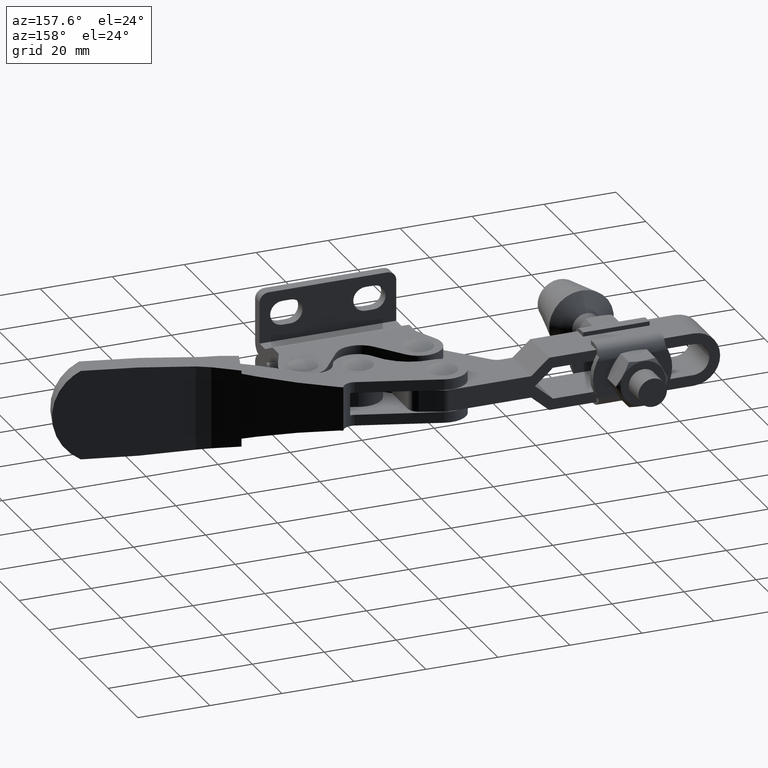
[diagram: clean part render]
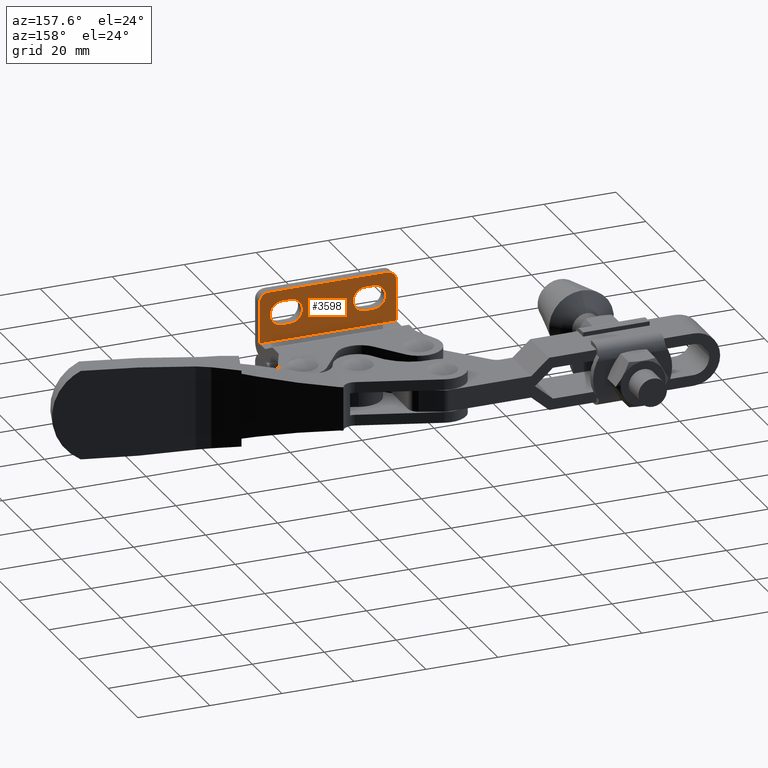
[diagram: same view with one face highlighted and labeled with its STEP entity id]
A machine part, auxiliary view. The second image highlights one B-rep face of the part: STEP entity #3598.
In plain terms, the highlighted planar face has unit normal (0, -1, 0).
Its self-contained STEP definition (entity closure, byte-faithful):
#105 = CIRCLE ( 'NONE', #3695, 2.500000000000000400 ) ;
#118 = ORIENTED_EDGE ( 'NONE', *, *, #6476, .F. ) ;
#120 = ORIENTED_EDGE ( 'NONE', *, *, #7947, .F. ) ;
#341 = ORIENTED_EDGE ( 'NONE', *, *, #8487, .F. ) ;
#613 = EDGE_LOOP ( 'NONE', ( #3210, #5684, #118, #10963 ) ) ;
#643 = VERTEX_POINT ( 'NONE', #5485 ) ;
#686 = CARTESIAN_POINT ( 'NONE',  ( 3.499999999999809000, 3.003038827833684400, 17.49580986106407500 ) ) ;
#713 = CARTESIAN_POINT ( 'NONE',  ( 41.50000000000009900, 3.003038827833684400, 3.494025664384484500 ) ) ;
#797 = CARTESIAN_POINT ( 'NONE',  ( 41.50000000000009900, 3.003038827833684400, 17.49580986106407500 ) ) ;
#921 = PLANE ( 'NONE',  #6405 ) ;
#960 = VERTEX_POINT ( 'NONE', #3116 ) ;
#963 = EDGE_CURVE ( 'NONE', #6530, #6537, #1988, .T. ) ;
#1022 = DIRECTION ( 'NONE',  ( 0.0000000000000000000, 1.000000000000000000, 2.168404344971008900E-019 ) ) ;
#1072 = CIRCLE ( 'NONE', #4188, 3.350000000000017900 ) ;
#1351 = CIRCLE ( 'NONE', #10800, 3.350000000000017900 ) ;
#1570 = DIRECTION ( 'NONE',  ( 0.0000000000000000000, 0.0000000000000000000, -1.000000000000000000 ) ) ;
#1707 = EDGE_CURVE ( 'NONE', #4796, #6530, #1351, .T. ) ;
#1782 = CARTESIAN_POINT ( 'NONE',  ( 3.499999999999809000, 3.003038827833684400, 3.494025664384484500 ) ) ;
#1790 = EDGE_CURVE ( 'NONE', #960, #643, #1072, .T. ) ;
#1900 = CARTESIAN_POINT ( 'NONE',  ( 35.20000000000003800, 3.003038827833684400, 7.745809861064102200 ) ) ;
#1945 = LINE ( 'NONE', #5148, #11170 ) ;
#1988 = LINE ( 'NONE', #9361, #3754 ) ;
#2008 = DIRECTION ( 'NONE',  ( 0.0000000000000000000, 1.000000000000000000, 2.168404344971008900E-019 ) ) ;
#2322 = CARTESIAN_POINT ( 'NONE',  ( 32.89999999999985600, 3.003038827833684400, 7.745809861064102200 ) ) ;
#2524 = EDGE_CURVE ( 'NONE', #3162, #9821, #105, .T. ) ;
#2598 = VERTEX_POINT ( 'NONE', #4574 ) ;
#2607 = VERTEX_POINT ( 'NONE', #7172 ) ;
#2682 = CARTESIAN_POINT ( 'NONE',  ( 45.00000000000000000, 3.003038827833684400, 17.49580986106407500 ) ) ;
#2920 = DIRECTION ( 'NONE',  ( 0.0000000000000000000, 1.000000000000000000, 2.168404344971008900E-019 ) ) ;
#2950 = VECTOR ( 'NONE', #4921, 1000.000000000000000 ) ;
#3116 = CARTESIAN_POINT ( 'NONE',  ( 12.09999999999969900, 3.003038827833684400, 14.44580986106413600 ) ) ;
#3162 = VERTEX_POINT ( 'NONE', #6242 ) ;
#3210 = ORIENTED_EDGE ( 'NONE', *, *, #963, .F. ) ;
#3241 = EDGE_CURVE ( 'NONE', #2607, #2598, #10687, .T. ) ;
#3267 = AXIS2_PLACEMENT_3D ( 'NONE', #7201, #2008, #8079 ) ;
#3407 = ORIENTED_EDGE ( 'NONE', *, *, #5446, .T. ) ;
#3459 = DIRECTION ( 'NONE',  ( 0.0000000000000000000, 0.0000000000000000000, 1.000000000000000000 ) ) ;
#3543 = DIRECTION ( 'NONE',  ( -1.000000000000000000, 0.0000000000000000000, 0.0000000000000000000 ) ) ;
#3577 = DIRECTION ( 'NONE',  ( 0.0000000000000000000, 1.000000000000000000, 2.168404344971008900E-019 ) ) ;
#3598 = ADVANCED_FACE ( 'NONE', ( #6326, #10947, #8364 ), #921, .F. ) ;
#3600 = CARTESIAN_POINT ( 'NONE',  ( 32.89999999999985600, 3.003038827833684400, 11.09580986106411700 ) ) ;
#3695 = AXIS2_PLACEMENT_3D ( 'NONE', #8768, #3577, #9628 ) ;
#3754 = VECTOR ( 'NONE', #10053, 1000.000000000000000 ) ;
#3852 = VECTOR ( 'NONE', #5081, 1000.000000000000000 ) ;
#3928 = VERTEX_POINT ( 'NONE', #10017 ) ;
#3980 = DIRECTION ( 'NONE',  ( 0.0000000000000000000, 0.0000000000000000000, 1.000000000000000000 ) ) ;
#3989 = CARTESIAN_POINT ( 'NONE',  ( 12.09999999999971500, 3.003038827833684400, 11.09580986106411700 ) ) ;
#4016 = LINE ( 'NONE', #797, #10671 ) ;
#4033 = CARTESIAN_POINT ( 'NONE',  ( 9.799999999999517500, 3.003038827833684400, 7.745809861064102200 ) ) ;
#4123 = EDGE_CURVE ( 'NONE', #4515, #2598, #4016, .T. ) ;
#4188 = AXIS2_PLACEMENT_3D ( 'NONE', #3989, #8955, #4841 ) ;
#4515 = VERTEX_POINT ( 'NONE', #713 ) ;
#4574 = CARTESIAN_POINT ( 'NONE',  ( 41.50000000000009200, 3.003038827833684800, 14.99580986106413100 ) ) ;
#4796 = VERTEX_POINT ( 'NONE', #9206 ) ;
#4841 = DIRECTION ( 'NONE',  ( 0.0000000000000000000, 0.0000000000000000000, 1.000000000000000000 ) ) ;
#4921 = DIRECTION ( 'NONE',  ( -1.000000000000000000, 0.0000000000000000000, 0.0000000000000000000 ) ) ;
#5039 = CIRCLE ( 'NONE', #9402, 3.350000000000017900 ) ;
#5081 = DIRECTION ( 'NONE',  ( 1.000000000000000000, 0.0000000000000000000, 0.0000000000000000000 ) ) ;
#5121 = CARTESIAN_POINT ( 'NONE',  ( 35.20000000000003800, 3.003038827833684400, 11.09580986106411700 ) ) ;
#5148 = CARTESIAN_POINT ( 'NONE',  ( 45.00000000000000000, 3.003038827833684400, 3.494025664384485800 ) ) ;
#5257 = LINE ( 'NONE', #4033, #2950 ) ;
#5369 = EDGE_LOOP ( 'NONE', ( #9125, #9260, #5899, #7931, #3407, #341 ) ) ;
#5406 = EDGE_CURVE ( 'NONE', #2607, #9821, #9394, .T. ) ;
#5427 = CARTESIAN_POINT ( 'NONE',  ( 5.999999999999811700, 3.003038827833684400, 17.49580986106407800 ) ) ;
#5446 = EDGE_CURVE ( 'NONE', #4515, #9556, #1945, .T. ) ;
#5485 = CARTESIAN_POINT ( 'NONE',  ( 12.09999999999971500, 3.003038827833684400, 7.745809861064102200 ) ) ;
#5602 = ORIENTED_EDGE ( 'NONE', *, *, #1790, .F. ) ;
#5684 = ORIENTED_EDGE ( 'NONE', *, *, #1707, .F. ) ;
#5843 = CARTESIAN_POINT ( 'NONE',  ( 35.20000000000003800, 3.003038827833684400, 14.44580986106413600 ) ) ;
#5884 = LINE ( 'NONE', #9423, #3852 ) ;
#5899 = ORIENTED_EDGE ( 'NONE', *, *, #3241, .T. ) ;
#5985 = DIRECTION ( 'NONE',  ( 0.0000000000000000000, 0.0000000000000000000, 1.000000000000000000 ) ) ;
#6242 = CARTESIAN_POINT ( 'NONE',  ( 3.499999999999809000, 3.003038827833684400, 14.99580986106407800 ) ) ;
#6267 = VECTOR ( 'NONE', #1570, 1000.000000000000000 ) ;
#6326 = FACE_BOUND ( 'NONE', #613, .T. ) ;
#6405 = AXIS2_PLACEMENT_3D ( 'NONE', #2682, #8741, #3543 ) ;
#6476 = EDGE_CURVE ( 'NONE', #7638, #4796, #10447, .T. ) ;
#6530 = VERTEX_POINT ( 'NONE', #7571 ) ;
#6537 = VERTEX_POINT ( 'NONE', #5843 ) ;
#6570 = VERTEX_POINT ( 'NONE', #9316 ) ;
#6619 = EDGE_CURVE ( 'NONE', #6537, #7638, #5039, .T. ) ;
#6787 = EDGE_LOOP ( 'NONE', ( #120, #7904, #10420, #5602 ) ) ;
#6827 = AXIS2_PLACEMENT_3D ( 'NONE', #8109, #2920, #8976 ) ;
#6843 = DIRECTION ( 'NONE',  ( -1.000000000000000000, 0.0000000000000000000, 0.0000000000000000000 ) ) ;
#7099 = VECTOR ( 'NONE', #6843, 1000.000000000000000 ) ;
#7172 = CARTESIAN_POINT ( 'NONE',  ( 39.00000000000014900, 3.003038827833684400, 17.49580986106408200 ) ) ;
#7201 = CARTESIAN_POINT ( 'NONE',  ( 9.799999999999517500, 3.003038827833684400, 11.09580986106411700 ) ) ;
#7499 = DIRECTION ( 'NONE',  ( -1.000000000000000000, 0.0000000000000000000, 0.0000000000000000000 ) ) ;
#7571 = CARTESIAN_POINT ( 'NONE',  ( 32.89999999999984900, 3.003038827833684400, 14.44580986106413800 ) ) ;
#7638 = VERTEX_POINT ( 'NONE', #1900 ) ;
#7904 = ORIENTED_EDGE ( 'NONE', *, *, #9243, .F. ) ;
#7931 = ORIENTED_EDGE ( 'NONE', *, *, #4123, .F. ) ;
#7947 = EDGE_CURVE ( 'NONE', #3928, #960, #5884, .T. ) ;
#8079 = DIRECTION ( 'NONE',  ( 0.0000000000000000000, 0.0000000000000000000, 1.000000000000000000 ) ) ;
#8109 = CARTESIAN_POINT ( 'NONE',  ( 39.00000000000014900, 3.003038827833684400, 14.99580986106413100 ) ) ;
#8364 = FACE_OUTER_BOUND ( 'NONE', #5369, .T. ) ;
#8487 = EDGE_CURVE ( 'NONE', #3162, #9556, #8572, .T. ) ;
#8546 = CARTESIAN_POINT ( 'NONE',  ( 45.00000000000000000, 3.003038827833684400, 17.49580986106407500 ) ) ;
#8572 = LINE ( 'NONE', #686, #6267 ) ;
#8741 = DIRECTION ( 'NONE',  ( 0.0000000000000000000, -1.000000000000000000, 0.0000000000000000000 ) ) ;
#8768 = CARTESIAN_POINT ( 'NONE',  ( 5.999999999999811700, 3.003038827833684400, 14.99580986106407800 ) ) ;
#8955 = DIRECTION ( 'NONE',  ( 0.0000000000000000000, 1.000000000000000000, 2.168404344971008900E-019 ) ) ;
#8956 = CIRCLE ( 'NONE', #3267, 3.350000000000017900 ) ;
#8976 = DIRECTION ( 'NONE',  ( 0.0000000000000000000, 0.0000000000000000000, 1.000000000000000000 ) ) ;
#9125 = ORIENTED_EDGE ( 'NONE', *, *, #2524, .T. ) ;
#9206 = CARTESIAN_POINT ( 'NONE',  ( 32.89999999999985600, 3.003038827833684400, 7.745809861064102200 ) ) ;
#9243 = EDGE_CURVE ( 'NONE', #6570, #3928, #8956, .T. ) ;
#9260 = ORIENTED_EDGE ( 'NONE', *, *, #5406, .F. ) ;
#9316 = CARTESIAN_POINT ( 'NONE',  ( 9.799999999999517500, 3.003038827833684400, 7.745809861064102200 ) ) ;
#9361 = CARTESIAN_POINT ( 'NONE',  ( 32.89999999999984900, 3.003038827833684400, 14.44580986106413800 ) ) ;
#9394 = LINE ( 'NONE', #8546, #7099 ) ;
#9402 = AXIS2_PLACEMENT_3D ( 'NONE', #5121, #11181, #5985 ) ;
#9423 = CARTESIAN_POINT ( 'NONE',  ( 9.799999999999508700, 3.003038827833684400, 14.44580986106413800 ) ) ;
#9451 = DIRECTION ( 'NONE',  ( -1.000000000000000000, 0.0000000000000000000, 0.0000000000000000000 ) ) ;
#9556 = VERTEX_POINT ( 'NONE', #1782 ) ;
#9628 = DIRECTION ( 'NONE',  ( 0.0000000000000000000, 0.0000000000000000000, 1.000000000000000000 ) ) ;
#9821 = VERTEX_POINT ( 'NONE', #5427 ) ;
#10017 = CARTESIAN_POINT ( 'NONE',  ( 9.799999999999510400, 3.003038827833684400, 14.44580986106413800 ) ) ;
#10053 = DIRECTION ( 'NONE',  ( 1.000000000000000000, 0.0000000000000000000, 0.0000000000000000000 ) ) ;
#10175 = VECTOR ( 'NONE', #7499, 1000.000000000000000 ) ;
#10420 = ORIENTED_EDGE ( 'NONE', *, *, #10565, .F. ) ;
#10447 = LINE ( 'NONE', #2322, #10175 ) ;
#10565 = EDGE_CURVE ( 'NONE', #643, #6570, #5257, .T. ) ;
#10671 = VECTOR ( 'NONE', #3459, 1000.000000000000000 ) ;
#10687 = CIRCLE ( 'NONE', #6827, 2.499999999999950300 ) ;
#10800 = AXIS2_PLACEMENT_3D ( 'NONE', #3600, #1022, #3980 ) ;
#10947 = FACE_BOUND ( 'NONE', #6787, .T. ) ;
#10963 = ORIENTED_EDGE ( 'NONE', *, *, #6619, .F. ) ;
#11170 = VECTOR ( 'NONE', #9451, 1000.000000000000000 ) ;
#11181 = DIRECTION ( 'NONE',  ( 0.0000000000000000000, 1.000000000000000000, 2.168404344971008900E-019 ) ) ;